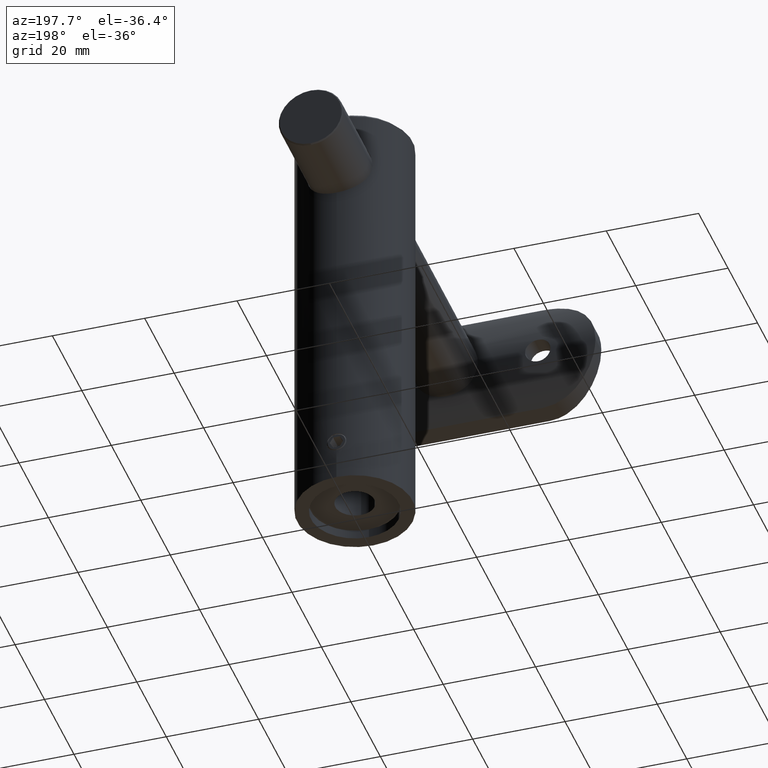
[diagram: clean part render]
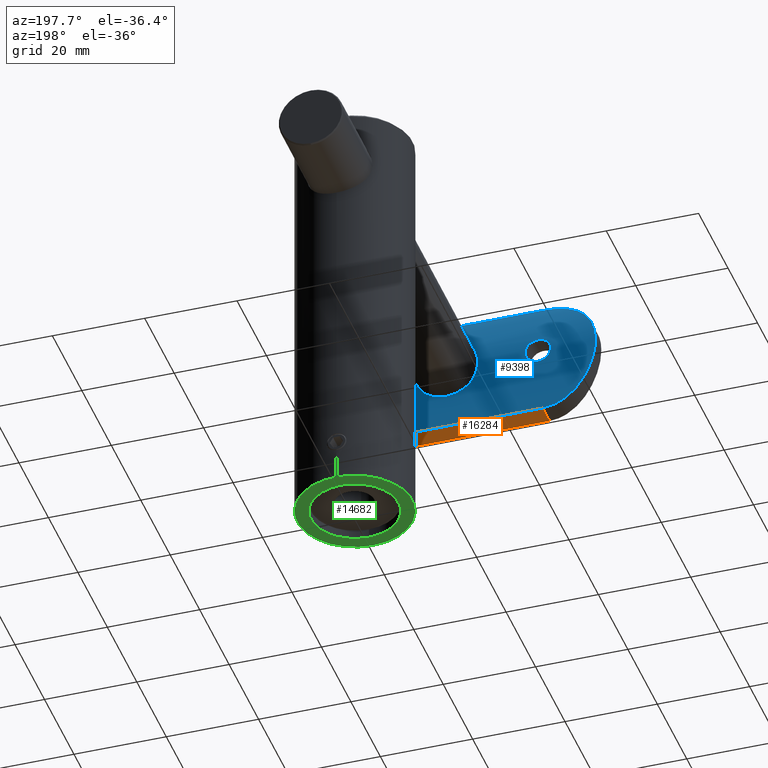
[diagram: same view with three faces highlighted in distinct colors, each labeled with its STEP entity id]
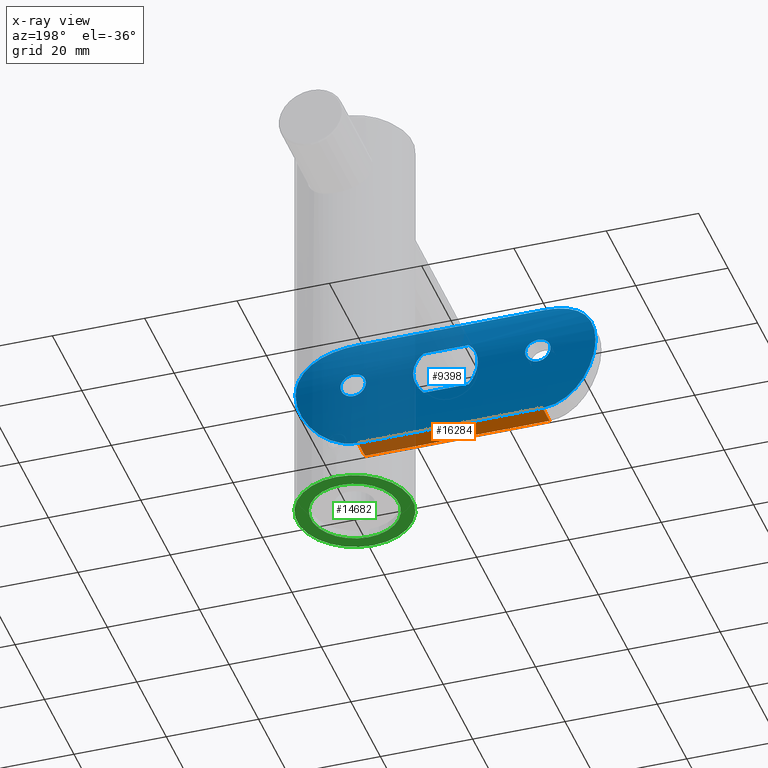
[diagram: x-ray of the same camera — body ghosted, the three highlighted faces saturated]
A machine part, auxiliary view with three faces highlighted in distinct colors.
The next image is the same camera in x-ray (body ghosted, the three faces saturated) — at least one of them is partly hidden behind the body in this view.
Their STEP definitions:

[orange] entity #16284 — the highlighted planar face has unit normal (0, 0, 1).
#433 = EDGE_CURVE ( 'NONE', #2323, #16320, #3040, .T. ) ;
#442 = VECTOR ( 'NONE', #17497, 1000.000000000000000 ) ;
#1345 = AXIS2_PLACEMENT_3D ( 'NONE', #5598, #2501, #15999 ) ;
#1474 = DIRECTION ( 'NONE',  ( -0.000000000000000000, -1.000000000000000000, -0.000000000000000000 ) ) ;
#1551 = CARTESIAN_POINT ( 'NONE',  ( 12.50000000000000355, 3.318729470161020600, -20.00000000000000355 ) ) ;
#2323 = VERTEX_POINT ( 'NONE', #1551 ) ;
#2501 = DIRECTION ( 'NONE',  ( -1.000000000000000000, 0.000000000000000000, 0.000000000000000000 ) ) ;
#2969 = EDGE_CURVE ( 'NONE', #9672, #7325, #15589, .T. ) ;
#3040 = LINE ( 'NONE', #10943, #442 ) ;
#3254 = CARTESIAN_POINT ( 'NONE',  ( 12.50000000000000355, 8.077208171562689998, 20.00000000000000000 ) ) ;
#3307 = VECTOR ( 'NONE', #18069, 1000.000000000000000 ) ;
#3536 = ORIENTED_EDGE ( 'NONE', *, *, #9557, .T. ) ;
#4582 = VECTOR ( 'NONE', #13784, 1000.000000000000000 ) ;
#5598 = CARTESIAN_POINT ( 'NONE',  ( 12.49999999999999645, 3.318729470161020600, 32.50000000000000000 ) ) ;
#6406 = ORIENTED_EDGE ( 'NONE', *, *, #17116, .F. ) ;
#7325 = VERTEX_POINT ( 'NONE', #8567 ) ;
#7352 = LINE ( 'NONE', #15048, #3307 ) ;
#8036 = ORIENTED_EDGE ( 'NONE', *, *, #2969, .T. ) ;
#8567 = CARTESIAN_POINT ( 'NONE',  ( 12.50000000000000355, 3.318729470161020600, 20.00000000000000000 ) ) ;
#9441 = ORIENTED_EDGE ( 'NONE', *, *, #433, .T. ) ;
#9557 = EDGE_CURVE ( 'NONE', #7325, #2323, #9575, .T. ) ;
#9575 = LINE ( 'NONE', #13909, #4582 ) ;
#9672 = VERTEX_POINT ( 'NONE', #3254 ) ;
#10943 = CARTESIAN_POINT ( 'NONE',  ( 12.50000000000000355, 3.318729470161020600, -20.00000000000000355 ) ) ;
#11971 = CARTESIAN_POINT ( 'NONE',  ( 12.50000000000000355, 3.318729470161020600, 20.00000000000000000 ) ) ;
#12292 = EDGE_LOOP ( 'NONE', ( #3536, #9441, #6406, #8036 ) ) ;
#13784 = DIRECTION ( 'NONE',  ( 0.000000000000000000, 0.000000000000000000, -1.000000000000000000 ) ) ;
#13909 = CARTESIAN_POINT ( 'NONE',  ( 12.49999999999999645, 3.318729470161020600, 32.50000000000000000 ) ) ;
#15048 = CARTESIAN_POINT ( 'NONE',  ( 12.49999999999999645, 8.077208171562689998, 32.50000000000000000 ) ) ;
#15192 = FACE_OUTER_BOUND ( 'NONE', #12292, .T. ) ;
#15589 = LINE ( 'NONE', #11971, #17710 ) ;
#15999 = DIRECTION ( 'NONE',  ( 0.000000000000000000, 0.000000000000000000, 1.000000000000000000 ) ) ;
#16137 = PLANE ( 'NONE',  #1345 ) ;
#16284 = ADVANCED_FACE ( 'NONE', ( #15192 ), #16137, .F. ) ;
#16320 = VERTEX_POINT ( 'NONE', #19156 ) ;
#17116 = EDGE_CURVE ( 'NONE', #9672, #16320, #7352, .T. ) ;
#17497 = DIRECTION ( 'NONE',  ( 0.000000000000000000, 1.000000000000000000, 0.000000000000000000 ) ) ;
#17710 = VECTOR ( 'NONE', #1474, 1000.000000000000000 ) ;
#18069 = DIRECTION ( 'NONE',  ( 0.000000000000000000, 0.000000000000000000, -1.000000000000000000 ) ) ;
#19156 = CARTESIAN_POINT ( 'NONE',  ( 12.50000000000000355, 8.077208171562689998, -20.00000000000000355 ) ) ;

[blue] entity #9398 — the highlighted cylindrical surface (partial cylindrical patch) has radius 25.2 mm, axis along (1, -0, -0).
#27 = CARTESIAN_POINT ( 'NONE',  ( -1.848043787636058921, 0.06372369354511402129, 6.767591064094360398 ) ) ;
#38 = CARTESIAN_POINT ( 'NONE',  ( -1.380705439593751471, 0.03740314638222813626, -22.38512476952050889 ) ) ;
#81 = CARTESIAN_POINT ( 'NONE',  ( 1.667268011024897856, 0.04195479554922608434, 32.41603179174911276 ) ) ;
#89 = CARTESIAN_POINT ( 'NONE',  ( 0.9221644624557857606, 0.01267861320224365415, 6.954787537755473537 ) ) ;
#155 = CARTESIAN_POINT ( 'NONE',  ( -0.2349423089766328465, 2.852032032984510242E-05, 6.999897326837698053 ) ) ;
#169 = CARTESIAN_POINT ( 'NONE',  ( -1.220874907014683819, 0.02904747797317693697, -22.47063278192353053 ) ) ;
#238 = CARTESIAN_POINT ( 'NONE',  ( -2.188487952104988477, 0.09500982583482578403, -21.67489940466903064 ) ) ;
#376 = CARTESIAN_POINT ( 'NONE',  ( -10.83002449294436431, 2.440458914311948835, -26.29431497601598622 ) ) ;
#394 = ORIENTED_EDGE ( 'NONE', *, *, #13033, .F. ) ;
#589 = CARTESIAN_POINT ( 'NONE',  ( 1.677668902466895817, 0.05546439489903875336, -17.81367847826244599 ) ) ;
#735 = CARTESIAN_POINT ( 'NONE',  ( 2.290527553827960361, 0.1006377947985132304, -6.630852029072079823 ) ) ;
#812 = FACE_OUTER_BOUND ( 'NONE', #13482, .T. ) ;
#858 = CARTESIAN_POINT ( 'NONE',  ( -12.50000000000000000, 3.318729470161021933, 20.84105733039345409 ) ) ;
#906 = CARTESIAN_POINT ( 'NONE',  ( -4.669349089494447824, 0.4341452233588674048, -5.235765592750420971 ) ) ;
#942 = ORIENTED_EDGE ( 'NONE', *, *, #9557, .F. ) ;
#975 = CARTESIAN_POINT ( 'NONE',  ( 0.000000000000000000, 6.938893903907228378E-15, -7.000000000000000000 ) ) ;
#997 = CARTESIAN_POINT ( 'NONE',  ( 0.000000000000000000, 6.938893903907228378E-15, -7.000000000000000000 ) ) ;
#1010 = CARTESIAN_POINT ( 'NONE',  ( 0.000000000000000000, 0.000000000000000000, 17.25000000000000000 ) ) ;
#1110 = CARTESIAN_POINT ( 'NONE',  ( 11.68341459577140107, 2.871341540761546351, -24.46233648995672993 ) ) ;
#1143 = CARTESIAN_POINT ( 'NONE',  ( 1.377952979709323955, 0.03725658765956723489, 17.61336343462641452 ) ) ;
#1244 = CARTESIAN_POINT ( 'NONE',  ( 11.21245238722107196, 2.629098992545249036, -25.58474759764794015 ) ) ;
#1287 = CARTESIAN_POINT ( 'NONE',  ( 12.41604513394916331, 3.270190002513742034, 21.66440971848879826 ) ) ;
#1292 = B_SPLINE_CURVE_WITH_KNOTS ( 'NONE', 3,
 ( #7649, #1578, #6524, #14207, #5118, #9428, #2022, #15606, #376, #3422, #6590, #11015, #11203, #9633, #17177, #15673, #10952, #14010, #6398, #14270, #11078, #2087, #4919, #6462, #6659, #2156 ),
 .UNSPECIFIED., .F., .F.,
 ( 4, 2, 2, 2, 2, 2, 2, 2, 2, 2, 2, 2, 4 ),
 ( 0.000000000000000000, 0.002482949619020705274, 0.003724424428531052274, 0.004965899238041399273, 0.007448848857062090670, 0.008690323666572441139, 0.009931798476082793342, 0.01117327328559314381, 0.01241474809510349255, 0.01489769771412418654, 0.01613917252363453528, 0.01738064733314488228, 0.01986359695216557628 ),
 .UNSPECIFIED. ) ;
#1301 = CARTESIAN_POINT ( 'NONE',  ( 0.000000000000000000, 0.000000000000000000, -32.50000000000000000 ) ) ;
#1363 = CARTESIAN_POINT ( 'NONE',  ( 2.750065284371434160, 0.1505061740554871630, -19.82148950650028496 ) ) ;
#1402 = CARTESIAN_POINT ( 'NONE',  ( -4.994997497496878047, 0.5000000000000004441, 4.904079934095687321 ) ) ;
#1405 = CARTESIAN_POINT ( 'NONE',  ( 2.661862787343811210, 0.1409550103587273451, -19.28631872760430710 ) ) ;
#1426 = B_SPLINE_CURVE_WITH_KNOTS ( 'NONE', 3,
 ( #7312, #10169, #7245, #13277, #5664, #5723, #4273, #11620, #4205, #2567, #13339, #5595, #17839, #11873, #14946, #19154, #5777, #5847, #1244, #1110, #16194, #11680, #19344, #16258, #2756, #17645 ),
 .UNSPECIFIED., .F., .F.,
 ( 4, 2, 2, 2, 2, 2, 2, 2, 2, 2, 2, 2, 4 ),
 ( 0.000000000000000000, 0.002483427128890328822, 0.003725140693335495835, 0.004966854257780662849, 0.007450281386671003814, 0.008691994951116173429, 0.009933708515561343044, 0.01117542208000651439, 0.01241713564445168574, 0.01490056277334201457, 0.01614227633778717377, 0.01738398990223233298, 0.01986741703112264792 ),
 .UNSPECIFIED. ) ;
#1468 = CARTESIAN_POINT ( 'NONE',  ( 2.185445985078765752, 0.09474132932689142972, 18.32100581967393182 ) ) ;
#1471 = CARTESIAN_POINT ( 'NONE',  ( 2.609876908287981578, 0.1354165326377147760, -19.11482317694285271 ) ) ;
#1524 = CARTESIAN_POINT ( 'NONE',  ( 1.816470635807413192, 0.06522320398721925816, 22.07265203258289432 ) ) ;
#1551 = CARTESIAN_POINT ( 'NONE',  ( 12.50000000000000355, 3.318729470161020600, -20.00000000000000355 ) ) ;
#1578 = CARTESIAN_POINT ( 'NONE',  ( -12.49999999999999645, 3.318729470161020600, -20.84092147420122032 ) ) ;
#1678 = CARTESIAN_POINT ( 'NONE',  ( 8.562141571826806796, 1.497233673915082219, 29.11593343704042880 ) ) ;
#1723 = CARTESIAN_POINT ( 'NONE',  ( 2.385900400082740624, 0.1130020285006599484, -18.62084753042212171 ) ) ;
#1752 = FACE_BOUND ( 'NONE', #2373, .T. ) ;
#1823 = EDGE_CURVE ( 'NONE', #10117, #6896, #19364, .T. ) ;
#1990 = FACE_BOUND ( 'NONE', #7555, .T. ) ;
#2000 = CARTESIAN_POINT ( 'NONE',  ( 0.000000000000000000, 6.938893903907228378E-15, -7.000000000000000000 ) ) ;
#2022 = CARTESIAN_POINT ( 'NONE',  ( -11.68647699581960886, 2.872938612537734748, -24.45450101598523318 ) ) ;
#2087 = CARTESIAN_POINT ( 'NONE',  ( -3.291592242805512658, 0.2126942720887902427, -32.06594161125494225 ) ) ;
#2156 = CARTESIAN_POINT ( 'NONE',  ( 0.000000000000000000, 0.000000000000000000, -32.50000000000000000 ) ) ;
#2220 = CARTESIAN_POINT ( 'NONE',  ( -1.611077364521717126, 0.05052746572996459629, -6.816003579833036063 ) ) ;
#2237 = EDGE_CURVE ( 'NONE', #14121, #10117, #16927, .T. ) ;
#2242 = CARTESIAN_POINT ( 'NONE',  ( -1.664684350995173423, 0.04192139592815165294, 32.41608617209116971 ) ) ;
#2286 = B_SPLINE_CURVE_WITH_KNOTS ( 'NONE', 3,
 ( #975, #7051, #3822, #2220, #18959, #5260, #6925, #6787, #8446, #19020, #906, #8517 ),
 .UNSPECIFIED., .F., .F.,
 ( 4, 2, 2, 2, 2, 4 ),
 ( 2.710505431213761085E-18, 0.001388628629513970723, 0.002082942944270954784, 0.002777257259027939712, 0.004165885888541908701, 0.005554514518055877689 ),
 .UNSPECIFIED. ) ;
#2314 = CARTESIAN_POINT ( 'NONE',  ( -10.15326211524584643, 2.134602035805865938, 27.30241053714793509 ) ) ;
#2315 = CARTESIAN_POINT ( 'NONE',  ( 3.746260209242295414, 0.2792753570640806315, -5.917626068317376031 ) ) ;
#2323 = VERTEX_POINT ( 'NONE', #1551 ) ;
#2373 = EDGE_LOOP ( 'NONE', ( #14703, #11355 ) ) ;
#2388 = CARTESIAN_POINT ( 'NONE',  ( -12.49999999999999645, 3.318729470161020600, 20.00000000000000000 ) ) ;
#2567 = CARTESIAN_POINT ( 'NONE',  ( 7.316861939614360821, 1.083062932609349494, -30.14291416132809687 ) ) ;
#2652 = CARTESIAN_POINT ( 'NONE',  ( -2.661730875569997323, 0.1409410865998123319, 20.71401158310862911 ) ) ;
#2713 = CARTESIAN_POINT ( 'NONE',  ( -0.3580001740282882094, 0.001917836237168821494, 22.73259430812108306 ) ) ;
#2756 = CARTESIAN_POINT ( 'NONE',  ( 12.49999999999999822, 3.318729470161019712, -20.84105733039345054 ) ) ;
#2789 = CARTESIAN_POINT ( 'NONE',  ( 0.8870457649144875001, 0.01506562019406045352, 17.39075877949504800 ) ) ;
#2807 = CARTESIAN_POINT ( 'NONE',  ( 11.82730682096132568, 2.947497412072442202, 24.06646263368968874 ) ) ;
#2847 = CARTESIAN_POINT ( 'NONE',  ( -1.377384947430292605, 0.03722026577971891681, 22.38704495760668323 ) ) ;
#3004 = CARTESIAN_POINT ( 'NONE',  ( 0.4606467792952476104, -5.647623810542094514E-05, 7.000203314475387906 ) ) ;
#3013 = CARTESIAN_POINT ( 'NONE',  ( -1.217448732056684468, 0.02888063956007401456, -17.52767396449248238 ) ) ;
#3039 = CARTESIAN_POINT ( 'NONE',  ( 1.379931598055809561, 0.03736833065385465613, 22.38544828646618257 ) ) ;
#3069 = CARTESIAN_POINT ( 'NONE',  ( 2.471811025445441512, 0.1214254394478257310, -21.21849364676016947 ) ) ;
#3071 = CARTESIAN_POINT ( 'NONE',  ( 3.739686144282476477, 0.2782750895421334247, 5.921855256084517904 ) ) ;
#3084 = ORIENTED_EDGE ( 'NONE', *, *, #1823, .T. ) ;
#3108 = CARTESIAN_POINT ( 'NONE',  ( 2.749934349876255180, 0.1504917997237345262, 19.81948369612383232 ) ) ;
#3123 = CARTESIAN_POINT ( 'NONE',  ( 3.291592242805514434, 0.2126942720887934901, 32.06594161125494225 ) ) ;
#3139 = VECTOR ( 'NONE', #14016, 1000.000000000000000 ) ;
#3173 = CARTESIAN_POINT ( 'NONE',  ( 1.379931598055809561, 0.03736833065385465613, -17.61455171353381743 ) ) ;
#3205 = CARTESIAN_POINT ( 'NONE',  ( -0.3636032754976208925, -4.282222122230053222E-18, -22.75000000000001066 ) ) ;
#3237 = CARTESIAN_POINT ( 'NONE',  ( 1.816470635807413192, 0.06522320398721925816, -17.92734796741711278 ) ) ;
#3251 = CARTESIAN_POINT ( 'NONE',  ( 7.642973678624866984, 1.184744735341889843, 29.89937630247453981 ) ) ;
#3259 = CARTESIAN_POINT ( 'NONE',  ( -0.4673612864847880854, 0.003256157991254301273, 6.988305028286098342 ) ) ;
#3286 = CARTESIAN_POINT ( 'NONE',  ( 0.1795455977072642761, 7.832407784142106870E-15, -17.25000000000000355 ) ) ;
#3422 = CARTESIAN_POINT ( 'NONE',  ( -10.15187181039420672, 2.133985303426437774, -27.30437927746718429 ) ) ;
#3701 = VERTEX_POINT ( 'NONE', #1301 ) ;
#3760 = B_SPLINE_CURVE_WITH_KNOTS ( 'NONE', 3,
 ( #13520, #4442, #1287, #5763, #17949, #2807, #15047, #7486, #13385, #4316, #14932, #19587, #16440, #1678, #9138, #3251, #4561, #7617, #7815, #12373, #18205, #3123, #15191, #81, #10662, #6104 ),
 .UNSPECIFIED., .F., .F.,
 ( 4, 2, 2, 2, 2, 2, 2, 2, 2, 2, 2, 2, 4 ),
 ( 0.000000000000000000, 0.002482949619020690963, 0.003724424428531040998, 0.004965899238041390600, 0.007448848857062099343, 0.008690323666572449812, 0.009931798476082800281, 0.01117327328559315075, 0.01241474809510349601, 0.01489769771412419001, 0.01613917252363453528, 0.01738064733314488228, 0.01986359695216557281 ),
 .UNSPECIFIED. ) ;
#3822 = CARTESIAN_POINT ( 'NONE',  ( -0.9310396230433163334, 0.01311211510574621444, -6.953205413290147519 ) ) ;
#3839 = CARTESIAN_POINT ( 'NONE',  ( -10.83018612312571882, 2.440555194631706559, 26.29386951518686644 ) ) ;
#3904 = CARTESIAN_POINT ( 'NONE',  ( -8.266035766619465264, 1.392015620549705401, 29.38537545976073417 ) ) ;
#4020 = EDGE_CURVE ( 'NONE', #7353, #14121, #17210, .T. ) ;
#4205 = CARTESIAN_POINT ( 'NONE',  ( 6.305381315458570946, 0.7915044484486802867, -30.82371801999916272 ) ) ;
#4264 = CARTESIAN_POINT ( 'NONE',  ( 2.661818859993606790, 0.1409500894293580775, -20.71413469809018792 ) ) ;
#4273 = CARTESIAN_POINT ( 'NONE',  ( 4.460191993434857949, 0.3948698794312909266, -31.68435314470301023 ) ) ;
#4288 = CARTESIAN_POINT ( 'NONE',  ( -1.681001452974609789, 0.05567932825155805926, 17.81610398777751314 ) ) ;
#4316 = CARTESIAN_POINT ( 'NONE',  ( 10.15187181039420672, 2.133985303426435554, 27.30437927746717719 ) ) ;
#4326 = CARTESIAN_POINT ( 'NONE',  ( 2.185445985078765752, 0.09474132932689142972, -21.67899418032607528 ) ) ;
#4348 = CARTESIAN_POINT ( 'NONE',  ( -2.070049739579363557, 0.08484369530549545901, 21.81920921176698158 ) ) ;
#4358 = CARTESIAN_POINT ( 'NONE',  ( 2.071661256399241147, 0.08497705952025111364, 18.18262409988288653 ) ) ;
#4421 = CARTESIAN_POINT ( 'NONE',  ( 2.732147407359613034, 0.1485206058410737384, 20.36086701383229780 ) ) ;
#4442 = CARTESIAN_POINT ( 'NONE',  ( 12.50000000000000178, 3.318729470161021045, 20.84092147420122387 ) ) ;
#4514 = CARTESIAN_POINT ( 'NONE',  ( 3.131794892197711455, 0.1945159506885136003, 6.264640589746616861 ) ) ;
#4561 = CARTESIAN_POINT ( 'NONE',  ( 7.315607594578459327, 1.082687997029825322, 30.14380031678955874 ) ) ;
#4569 = CARTESIAN_POINT ( 'NONE',  ( 3.539860134001161285, 0.2490128047230138753, 6.043446963216091206 ) ) ;
#4578 = CARTESIAN_POINT ( 'NONE',  ( -2.662740999674293896, 0.1410487502677293670, -20.71023810214682115 ) ) ;
#4582 = VECTOR ( 'NONE', #13784, 1000.000000000000000 ) ;
#4628 = DIRECTION ( 'NONE',  ( -1.000000000000000000, 0.000000000000000000, 0.000000000000000000 ) ) ;
#4643 = CARTESIAN_POINT ( 'NONE',  ( -2.609961094115733182, 0.1354253680277228145, -20.88492447427831422 ) ) ;
#4715 = CARTESIAN_POINT ( 'NONE',  ( -1.819241778286838196, 0.06543225118885480363, -22.07002044224182669 ) ) ;
#4812 = ORIENTED_EDGE ( 'NONE', *, *, #15067, .T. ) ;
#4919 = CARTESIAN_POINT ( 'NONE',  ( -2.886391478844329672, 0.1625181075792200835, -32.16925023365995173 ) ) ;
#5118 = CARTESIAN_POINT ( 'NONE',  ( -12.07039748615804697, 3.078414103210626696, -23.27518083691609618 ) ) ;
#5260 = CARTESIAN_POINT ( 'NONE',  ( -2.281009278780524063, 0.1024524370745540786, -6.622027795030902553 ) ) ;
#5277 = CARTESIAN_POINT ( 'NONE',  ( -4.460191993434861502, 0.3948698794312914817, 31.68435314470301023 ) ) ;
#5278 = CARTESIAN_POINT ( 'NONE',  ( 3.367778438409112056E-16, 6.952467769420645123E-15, 22.75000000000000000 ) ) ;
#5340 = CARTESIAN_POINT ( 'NONE',  ( -11.68341459577140462, 2.871341540761545019, 24.46233648995672993 ) ) ;
#5545 = CARTESIAN_POINT ( 'NONE',  ( -2.186191567257209645, 0.09480897740506398497, 21.67789325702194958 ) ) ;
#5595 = CARTESIAN_POINT ( 'NONE',  ( 8.266035766619467040, 1.392015620549702959, -29.38537545976074483 ) ) ;
#5617 = CARTESIAN_POINT ( 'NONE',  ( -2.731891327557904869, 0.1484927668286209756, 20.36248250880535338 ) ) ;
#5664 = CARTESIAN_POINT ( 'NONE',  ( 3.277855041561019700, 0.2108776143917553691, -32.06970119788353202 ) ) ;
#5694 = CARTESIAN_POINT ( 'NONE',  ( 1.220040459320808290, 0.02899940046474466446, 17.52886843461235600 ) ) ;
#5723 = CARTESIAN_POINT ( 'NONE',  ( 4.070717388981839768, 0.3277296730789981960, -31.82587335543209761 ) ) ;
#5743 = CARTESIAN_POINT ( 'NONE',  ( -2.385862764267738356, 0.1129972152947571334, 21.37928177715322775 ) ) ;
#5763 = CARTESIAN_POINT ( 'NONE',  ( 12.17172894015757834, 3.134241449003887681, 22.87552147047213680 ) ) ;
#5771 = CARTESIAN_POINT ( 'NONE',  ( 2.749934349876255180, 0.1504917997237345262, -20.18051630387617124 ) ) ;
#5777 = CARTESIAN_POINT ( 'NONE',  ( 10.15326211524584643, 2.134602035805869047, -27.30241053714794930 ) ) ;
#5798 = CARTESIAN_POINT ( 'NONE',  ( -1.220874907014684485, 0.02904747797317695779, 17.52936721807647302 ) ) ;
#5847 = CARTESIAN_POINT ( 'NONE',  ( 10.83018612312572060, 2.440555194631707892, -26.29386951518687709 ) ) ;
#5880 = CARTESIAN_POINT ( 'NONE',  ( 0.8860473344149223385, 0.01503029826975388339, 22.60958046709580316 ) ) ;
#5910 = CARTESIAN_POINT ( 'NONE',  ( 0.8870457649144875001, 0.01506562019406045352, -22.60924122050494844 ) ) ;
#5952 = CARTESIAN_POINT ( 'NONE',  ( 2.385900400082740624, 0.1130020285006599484, 21.37915246957788540 ) ) ;
#6055 = CARTESIAN_POINT ( 'NONE',  ( -1.677983819124378329, 0.05547686773417471323, -17.81378335341627661 ) ) ;
#6087 = CARTESIAN_POINT ( 'NONE',  ( 2.609876908287981578, 0.1354165326377147760, 20.88517682305715084 ) ) ;
#6104 = CARTESIAN_POINT ( 'NONE',  ( 0.000000000000000000, 0.000000000000000000, 32.50000000000000000 ) ) ;
#6127 = CARTESIAN_POINT ( 'NONE',  ( -2.186191567257209201, 0.09480897740506145921, -18.32210674297804687 ) ) ;
#6155 = CARTESIAN_POINT ( 'NONE',  ( 1.818193974664967572, 0.06535601341085750526, 17.92905668979468103 ) ) ;
#6237 = CARTESIAN_POINT ( 'NONE',  ( -3.548809991974041900, 0.2502861401745588577, 6.038192309906697197 ) ) ;
#6309 = CARTESIAN_POINT ( 'NONE',  ( -2.749863044303474613, 0.1504839716144792949, -19.81620417960689906 ) ) ;
#6398 = CARTESIAN_POINT ( 'NONE',  ( -5.594010815491763822, 0.6168360506386560971, -31.20802645236642192 ) ) ;
#6458 = EDGE_CURVE ( 'NONE', #7325, #7118, #3760, .T. ) ;
#6462 = CARTESIAN_POINT ( 'NONE',  ( -1.667268011024897190, 0.04195479554922604964, -32.41603179174911276 ) ) ;
#6524 = CARTESIAN_POINT ( 'NONE',  ( -12.41604513394915976, 3.270190002513739813, -21.66440971848879826 ) ) ;
#6577 = VERTEX_POINT ( 'NONE', #18721 ) ;
#6590 = CARTESIAN_POINT ( 'NONE',  ( -9.908890582928830071, 2.028239840774365366, -27.63058222437334166 ) ) ;
#6605 = VERTEX_POINT ( 'NONE', #7940 ) ;
#6659 = CARTESIAN_POINT ( 'NONE',  ( -0.8408319059978934806, 2.861089066281186367E-17, -32.50000000000000000 ) ) ;
#6787 = CARTESIAN_POINT ( 'NONE',  ( -3.141571527728773461, 0.1929047068352935101, -6.272553163709011059 ) ) ;
#6885 = CARTESIAN_POINT ( 'NONE',  ( -12.06660317602190524, 3.076343127531658173, 23.28902056191594383 ) ) ;
#6887 = CARTESIAN_POINT ( 'NONE',  ( 1.849747642260559433, 0.06385367874898199847, -6.767109309269601525 ) ) ;
#6896 = VERTEX_POINT ( 'NONE', #11630 ) ;
#6925 = CARTESIAN_POINT ( 'NONE',  ( -2.501389699445221826, 0.1235345146525243104, -6.541914726237066269 ) ) ;
#6984 = CARTESIAN_POINT ( 'NONE',  ( 0.1818445906004799162, 5.646886315028670532E-19, -22.75000000000000000 ) ) ;
#7051 = CARTESIAN_POINT ( 'NONE',  ( -0.4697105472797771797, -2.258754526011465131E-18, -6.999999999999999112 ) ) ;
#7078 = CARTESIAN_POINT ( 'NONE',  ( -2.609961094115733626, 0.1354253680277228422, 19.11507552572168933 ) ) ;
#7118 = VERTEX_POINT ( 'NONE', #16468 ) ;
#7145 = CARTESIAN_POINT ( 'NONE',  ( -2.749863044303475057, 0.1504839716144792949, 20.18379582039309739 ) ) ;
#7245 = CARTESIAN_POINT ( 'NONE',  ( 1.664684350995175643, 0.04192139592815183335, -32.41608617209118393 ) ) ;
#7267 = CARTESIAN_POINT ( 'NONE',  ( -2.608673552859928080, 0.1352907402618927224, 20.88869986416368008 ) ) ;
#7312 = CARTESIAN_POINT ( 'NONE',  ( 0.000000000000000000, 0.000000000000000000, -32.50000000000000000 ) ) ;
#7325 = VERTEX_POINT ( 'NONE', #8567 ) ;
#7336 = CARTESIAN_POINT ( 'NONE',  ( -2.387772925441573157, 0.1131797228511475656, 18.62402471359490264 ) ) ;
#7353 = VERTEX_POINT ( 'NONE', #14757 ) ;
#7376 = CARTESIAN_POINT ( 'NONE',  ( 2.386475810722792357, 0.1130527907451603781, -21.37837905385300985 ) ) ;
#7405 = CARTESIAN_POINT ( 'NONE',  ( 3.367778438409112056E-16, 6.952467769420645123E-15, 22.75000000000000000 ) ) ;
#7486 = CARTESIAN_POINT ( 'NONE',  ( 11.21365936985681877, 2.629676505859725122, 25.58293283478850455 ) ) ;
#7491 = DIRECTION ( 'NONE',  ( 0.000000000000000000, 0.000000000000000000, -1.000000000000000000 ) ) ;
#7542 = EDGE_CURVE ( 'NONE', #17485, #6577, #17239, .T. ) ;
#7555 = EDGE_LOOP ( 'NONE', ( #7583, #394 ) ) ;
#7561 = CARTESIAN_POINT ( 'NONE',  ( 0.7123072138261845598, 0.009455089816870465222, -22.66219122090236127 ) ) ;
#7583 = ORIENTED_EDGE ( 'NONE', *, *, #7542, .F. ) ;
#7617 = CARTESIAN_POINT ( 'NONE',  ( 6.305223603466181714, 0.7914857843385516567, 30.82374023567219368 ) ) ;
#7649 = CARTESIAN_POINT ( 'NONE',  ( -12.49999999999999645, 3.318729470161020600, -20.00000000000000355 ) ) ;
#7693 = CARTESIAN_POINT ( 'NONE',  ( -0.7129347024110691544, 0.009461439531610339390, -17.33786553918137230 ) ) ;
#7748 = CARTESIAN_POINT ( 'NONE',  ( -3.141235740066085746, 0.1957021280014347442, 6.259908685906100168 ) ) ;
#7815 = CARTESIAN_POINT ( 'NONE',  ( 5.594010815491770039, 0.6168360506386563191, 31.20802645236641126 ) ) ;
#7834 = CARTESIAN_POINT ( 'NONE',  ( -2.732406010615071157, 0.1485492483776577055, -20.35858776644248991 ) ) ;
#7869 = ORIENTED_EDGE ( 'NONE', *, *, #17660, .T. ) ;
#7940 = CARTESIAN_POINT ( 'NONE',  ( 0.000000000000000000, 0.000000000000000000, 17.25000000000000000 ) ) ;
#8018 = CARTESIAN_POINT ( 'NONE',  ( 3.367778438409112056E-16, 6.952467769420645123E-15, 22.75000000000000000 ) ) ;
#8138 = B_SPLINE_CURVE_WITH_KNOTS ( 'NONE', 3,
 ( #5278, #18908, #2713, #17855, #13294, #14825, #2847, #14704, #13423, #4348, #5545, #5743, #16151, #7267, #2652, #5617, #7145, #16212, #10307, #19235, #7078, #19433, #7336, #8598, #10118, #17732, #4288, #16419, #5798, #17922, #13235, #11637 ),
 .UNSPECIFIED., .F., .F.,
 ( 4, 2, 2, 2, 2, 2, 2, 2, 2, 2, 2, 2, 2, 2, 2, 4 ),
 ( 0.008604157104151117716, 0.009141789900862767188, 0.009679422697574418394, 0.01021705549428606787, 0.01075468829099771734, 0.01129232108770936854, 0.01182995388442101801, 0.01236758668113266749, 0.01290521947784431869, 0.01344285227455596816, 0.01398048507126761764, 0.01451811786797926884, 0.01505575066469091831, 0.01559338346140256779, 0.01613101625811421899, 0.01720628185153751447 ),
 .UNSPECIFIED. ) ;
#8267 = CARTESIAN_POINT ( 'NONE',  ( -2.877492456091673478, 0.1615283928029718485, 32.17128298990892432 ) ) ;
#8319 = ORIENTED_EDGE ( 'NONE', *, *, #15297, .T. ) ;
#8343 = LINE ( 'NONE', #12671, #3139 ) ;
#8358 = VERTEX_POINT ( 'NONE', #8018 ) ;
#8375 = CARTESIAN_POINT ( 'NONE',  ( 4.994997497496878047, 0.5000000000000004441, 32.50000000000000000 ) ) ;
#8394 = CARTESIAN_POINT ( 'NONE',  ( -11.82318603278413960, 2.945306615177200271, 24.07833795785314734 ) ) ;
#8395 = CARTESIAN_POINT ( 'NONE',  ( 0.9402805556948540255, 0.01343035068150135597, -6.952064960875579125 ) ) ;
#8446 = CARTESIAN_POINT ( 'NONE',  ( -3.545792875619930395, 0.2477049255195075683, -6.053140542082076969 ) ) ;
#8517 = CARTESIAN_POINT ( 'NONE',  ( -4.994997497496878047, 0.5000000000000004441, -4.904079934095687321 ) ) ;
#8542 = CARTESIAN_POINT ( 'NONE',  ( 3.549571146164063329, 0.2503953886577584553, -6.037740435597695132 ) ) ;
#8567 = CARTESIAN_POINT ( 'NONE',  ( 12.50000000000000355, 3.318729470161020600, 20.00000000000000000 ) ) ;
#8598 = CARTESIAN_POINT ( 'NONE',  ( -2.188487952104988921, 0.09500982583482585342, 18.32510059533095870 ) ) ;
#8607 = CARTESIAN_POINT ( 'NONE',  ( 0.7123072138261845598, 0.009455089816870465222, 17.33780877909764229 ) ) ;
#8947 = CARTESIAN_POINT ( 'NONE',  ( 0.000000000000000000, 25.20000000000000639, 32.50000000000000000 ) ) ;
#8950 = CARTESIAN_POINT ( 'NONE',  ( -12.49999999999999645, 3.318729470161020600, -20.00000000000000355 ) ) ;
#9042 = CARTESIAN_POINT ( 'NONE',  ( 3.367778438409112056E-16, 6.952467769420645123E-15, -17.25000000000000000 ) ) ;
#9081 = CARTESIAN_POINT ( 'NONE',  ( -4.669080344610500255, 0.4340908759895246716, 5.236039319941006021 ) ) ;
#9091 = CARTESIAN_POINT ( 'NONE',  ( -2.661730875569997767, 0.1409410865998123596, -19.28598841689136734 ) ) ;
#9138 = CARTESIAN_POINT ( 'NONE',  ( 8.265288067340183176, 1.391754679466073785, 29.38603808824741392 ) ) ;
#9147 = CARTESIAN_POINT ( 'NONE',  ( -2.289067587771871359, 0.1005006583606698062, 6.631371122702274690 ) ) ;
#9273 = CARTESIAN_POINT ( 'NONE',  ( 4.669051333004630600, 0.4340850090705478670, 5.236068869397914050 ) ) ;
#9283 = CARTESIAN_POINT ( 'NONE',  ( -2.385862764267737468, 0.1129972152947546077, -18.62071822284676870 ) ) ;
#9298 = CARTESIAN_POINT ( 'NONE',  ( 0.3619265619250442434, 0.001981854215834538951, -17.26799651666123481 ) ) ;
#9314 = FACE_BOUND ( 'NONE', #19260, .T. ) ;
#9333 = CARTESIAN_POINT ( 'NONE',  ( -3.745609676626447282, 0.2791767651045830023, 5.918042161965037629 ) ) ;
#9344 = CARTESIAN_POINT ( 'NONE',  ( -2.072542795732173815, 0.08505021053595093750, -21.81636770479491361 ) ) ;
#9398 = ADVANCED_FACE ( 'NONE', ( #9314, #812, #1990, #1752 ), #13124, .T. ) ;
#9428 = CARTESIAN_POINT ( 'NONE',  ( -11.82730682096132746, 2.947497412072442646, -24.06646263368969940 ) ) ;
#9557 = EDGE_CURVE ( 'NONE', #7325, #2323, #9575, .T. ) ;
#9575 = LINE ( 'NONE', #13909, #4582 ) ;
#9633 = CARTESIAN_POINT ( 'NONE',  ( -8.562141571826799691, 1.497233673915079999, -29.11593343704044301 ) ) ;
#9786 = CARTESIAN_POINT ( 'NONE',  ( -6.305381315458571834, 0.7915044484486803977, 30.82371801999916272 ) ) ;
#9923 = CARTESIAN_POINT ( 'NONE',  ( -12.41600094213971772, 3.270152093552311179, 21.66693629175974678 ) ) ;
#10117 = VERTEX_POINT ( 'NONE', #10321 ) ;
#10118 = CARTESIAN_POINT ( 'NONE',  ( -2.072542795732173371, 0.08505021053595093750, 18.18363229520508639 ) ) ;
#10169 = CARTESIAN_POINT ( 'NONE',  ( 0.8406273536774236943, -3.811648262644351526E-18, -32.50000000000000000 ) ) ;
#10201 = CARTESIAN_POINT ( 'NONE',  ( 0.3606231533980621129, 0.001966636658819735650, 17.26785897055960106 ) ) ;
#10307 = CARTESIAN_POINT ( 'NONE',  ( -2.732406010615071601, 0.1485492483776577055, 19.64141223355751009 ) ) ;
#10321 = CARTESIAN_POINT ( 'NONE',  ( 4.994997497496878047, 0.5000000000000004441, 4.904079934095680215 ) ) ;
#10578 = CARTESIAN_POINT ( 'NONE',  ( 2.661862787343811210, 0.1409550103587273451, 20.71368127239568935 ) ) ;
#10616 = CARTESIAN_POINT ( 'NONE',  ( -1.681001452974610233, 0.05567932825155808008, -22.18389601222249397 ) ) ;
#10632 = CARTESIAN_POINT ( 'NONE',  ( -12.49999999999999645, 3.318729470161020600, 20.00000000000000000 ) ) ;
#10648 = EDGE_CURVE ( 'NONE', #18459, #7353, #2286, .T. ) ;
#10662 = CARTESIAN_POINT ( 'NONE',  ( 0.8408319059978930365, 2.371692252312038176E-17, 32.50000000000000000 ) ) ;
#10666 = B_SPLINE_CURVE_WITH_KNOTS ( 'NONE', 3,
 ( #1010, #19374, #10201, #8607, #2789, #5694, #1143, #16551, #6155, #4358, #1468, #16486, #11902, #13500, #13561, #14974, #3108, #13692, #4421, #10578, #6087, #12034, #5952, #13622, #16619, #1524, #15030, #3039, #18187, #5880, #16678, #15104, #19503, #7405 ),
 .UNSPECIFIED., .F., .F.,
 ( 4, 2, 2, 2, 2, 2, 2, 2, 2, 2, 2, 2, 2, 2, 2, 2, 4 ),
 ( 0.000000000000000000, 0.0005377598190094449657, 0.001075519638018889931, 0.001613279457028334463, 0.002151039276037779429, 0.002688799095047223961, 0.003226558914056668493, 0.003764318733066113892, 0.004302078552075558858, 0.004839838371085003824, 0.005377598190094448789, 0.005915358009103893755, 0.006453117828113337853, 0.006990877647122783686, 0.007528637466132228652, 0.008066397285141673618, 0.008604157104151117716 ),
 .UNSPECIFIED. ) ;
#10730 = CARTESIAN_POINT ( 'NONE',  ( 2.285116335268840171, 0.1001709153427632476, 6.632589173777880376 ) ) ;
#10793 = CARTESIAN_POINT ( 'NONE',  ( -0.9333434786751416690, 0.01621162805871756082, 6.941448241634312843 ) ) ;
#10952 = CARTESIAN_POINT ( 'NONE',  ( -7.315607594578453998, 1.082687997029823324, -30.14380031678956939 ) ) ;
#11015 = CARTESIAN_POINT ( 'NONE',  ( -9.397641427769132250, 1.816225346274621177, -28.25204418689427044 ) ) ;
#11078 = CARTESIAN_POINT ( 'NONE',  ( -4.083048678825495159, 0.3297619529015533013, -31.82160056614383237 ) ) ;
#11203 = CARTESIAN_POINT ( 'NONE',  ( -9.128318860952347791, 1.709465851586695395, -28.54893592778295641 ) ) ;
#11355 = ORIENTED_EDGE ( 'NONE', *, *, #17698, .F. ) ;
#11365 = CARTESIAN_POINT ( 'NONE',  ( -9.910013130227614653, 2.028718244006088245, 27.62913782769574667 ) ) ;
#11367 = CARTESIAN_POINT ( 'NONE',  ( 4.316102207502559907, 0.3693900422898296898, -5.530128126320171589 ) ) ;
#11620 = CARTESIAN_POINT ( 'NONE',  ( 5.592058036261041032, 0.6162643484422618556, -31.20930733956447511 ) ) ;
#11630 = CARTESIAN_POINT ( 'NONE',  ( 4.994997497496878047, 0.5000000000000004441, -4.904079934095694426 ) ) ;
#11637 = CARTESIAN_POINT ( 'NONE',  ( 0.000000000000000000, 0.000000000000000000, 17.25000000000000000 ) ) ;
#11680 = CARTESIAN_POINT ( 'NONE',  ( 12.06660317602190702, 3.076343127531659061, -23.28902056191594738 ) ) ;
#11868 = CARTESIAN_POINT ( 'NONE',  ( 1.676804932486638089, 0.05540344988688962469, -22.18703308796564144 ) ) ;
#11873 = CARTESIAN_POINT ( 'NONE',  ( 9.129107160068510751, 1.709771713892839440, -28.54809784016516971 ) ) ;
#11902 = CARTESIAN_POINT ( 'NONE',  ( 2.471811025445441512, 0.1214254394478257310, 18.78150635323983053 ) ) ;
#11947 = ORIENTED_EDGE ( 'NONE', *, *, #4020, .T. ) ;
#12034 = CARTESIAN_POINT ( 'NONE',  ( 2.471992188797773160, 0.1214422965093859136, 21.21829803538181025 ) ) ;
#12062 = CARTESIAN_POINT ( 'NONE',  ( 1.818193974664967572, 0.06535601341085750526, -22.07094331020531897 ) ) ;
#12066 = DIRECTION ( 'NONE',  ( -0.000000000000000000, -0.000000000000000000, 1.000000000000000000 ) ) ;
#12120 = CARTESIAN_POINT ( 'NONE',  ( 0.3606231533980621129, 0.001966636658819735650, -22.73214102944040249 ) ) ;
#12131 = CARTESIAN_POINT ( 'NONE',  ( -1.377384947430292605, 0.03722026577971900008, -17.61295504239332388 ) ) ;
#12216 = EDGE_CURVE ( 'NONE', #17749, #18316, #8343, .T. ) ;
#12263 = VECTOR ( 'NONE', #18956, 1000.000000000000000 ) ;
#12265 = CARTESIAN_POINT ( 'NONE',  ( -2.731891327557904869, 0.1484927668286209479, -19.63751749119465728 ) ) ;
#12298 = CARTESIAN_POINT ( 'NONE',  ( 2.073153042044685090, 0.08509194481504836483, -18.18410119137066872 ) ) ;
#12320 = CARTESIAN_POINT ( 'NONE',  ( 2.923378882602775786, 0.1692259389580320350, 6.364519216893700815 ) ) ;
#12372 = EDGE_CURVE ( 'NONE', #3701, #2323, #1426, .T. ) ;
#12373 = CARTESIAN_POINT ( 'NONE',  ( 4.468211620779538151, 0.3963447934949523299, 31.68121519372563810 ) ) ;
#12671 = CARTESIAN_POINT ( 'NONE',  ( -12.49999999999999645, 3.318729470161020600, 32.50000000000005684 ) ) ;
#12699 = VECTOR ( 'NONE', #12066, 1000.000000000000000 ) ;
#12885 = CARTESIAN_POINT ( 'NONE',  ( 2.931071408694909231, 0.1701189516846384753, -6.361014005149245421 ) ) ;
#12953 = CARTESIAN_POINT ( 'NONE',  ( -7.643915563752463171, 1.185045859685587066, 29.89864509263436432 ) ) ;
#12954 = CARTESIAN_POINT ( 'NONE',  ( 0.000000000000000000, 0.000000000000000000, -22.75000000000000000 ) ) ;
#13033 = EDGE_CURVE ( 'NONE', #6577, #17485, #14735, .T. ) ;
#13124 = CYLINDRICAL_SURFACE ( 'NONE', #14483, 25.19999999999999929 ) ;
#13235 = CARTESIAN_POINT ( 'NONE',  ( -0.3636032754976208370, -4.705738595857204162E-18, 17.25000000000000355 ) ) ;
#13277 = CARTESIAN_POINT ( 'NONE',  ( 2.877492456091673922, 0.1615283928029718485, -32.17128298990892432 ) ) ;
#13294 = CARTESIAN_POINT ( 'NONE',  ( -0.8864897003658913643, 0.01505276392572449905, 22.60935115539858842 ) ) ;
#13339 = CARTESIAN_POINT ( 'NONE',  ( 7.643915563752462283, 1.185045859685583292, -29.89864509263435366 ) ) ;
#13385 = CARTESIAN_POINT ( 'NONE',  ( 10.83002449294435898, 2.440458914311947503, 26.29431497601598267 ) ) ;
#13423 = CARTESIAN_POINT ( 'NONE',  ( -1.816389252517511377, 0.06522504145088657557, 22.07252458703131381 ) ) ;
#13482 = EDGE_LOOP ( 'NONE', ( #8319, #18418, #942, #14214, #4812, #19026 ) ) ;
#13500 = CARTESIAN_POINT ( 'NONE',  ( 2.608974361319664315, 0.1353235704774162496, 19.11240251539045332 ) ) ;
#13520 = CARTESIAN_POINT ( 'NONE',  ( 12.50000000000000355, 3.318729470161020600, 20.00000000000000000 ) ) ;
#13561 = CARTESIAN_POINT ( 'NONE',  ( 2.661818859993606790, 0.1409500894293580775, 19.28586530190980852 ) ) ;
#13586 = CARTESIAN_POINT ( 'NONE',  ( 1.220040459320808290, 0.02899940046474466446, -22.47113156538764045 ) ) ;
#13588 = CARTESIAN_POINT ( 'NONE',  ( 1.840663757758762120, 0.06310474882529541751, 6.769890244458071749 ) ) ;
#13597 = CARTESIAN_POINT ( 'NONE',  ( -2.387772925441572269, 0.1131797228511475378, -21.37597528640511158 ) ) ;
#13622 = CARTESIAN_POINT ( 'NONE',  ( 2.186845405397447539, 0.09486715601729675540, 21.67698820101686863 ) ) ;
#13651 = CARTESIAN_POINT ( 'NONE',  ( -1.165555591662774226, 0.02593808576752894626, 6.906183376199994228 ) ) ;
#13692 = CARTESIAN_POINT ( 'NONE',  ( 2.750065284371434160, 0.1505061740554871630, 20.17851049349971504 ) ) ;
#13784 = DIRECTION ( 'NONE',  ( 0.000000000000000000, 0.000000000000000000, -1.000000000000000000 ) ) ;
#13848 = CARTESIAN_POINT ( 'NONE',  ( 4.994997497496878047, 0.5000000000000004441, 4.904079934095680215 ) ) ;
#13909 = CARTESIAN_POINT ( 'NONE',  ( 12.49999999999999645, 3.318729470161020600, 32.50000000000000000 ) ) ;
#14010 = CARTESIAN_POINT ( 'NONE',  ( -6.305223603466181714, 0.7914857843385505465, -30.82374023567220078 ) ) ;
#14016 = DIRECTION ( 'NONE',  ( 0.000000000000000000, 0.000000000000000000, -1.000000000000000000 ) ) ;
#14037 = EDGE_CURVE ( 'NONE', #6605, #8358, #10666, .T. ) ;
#14121 = VERTEX_POINT ( 'NONE', #1402 ) ;
#14207 = CARTESIAN_POINT ( 'NONE',  ( -12.17172894015757656, 3.134241449003885016, -22.87552147047213325 ) ) ;
#14214 = ORIENTED_EDGE ( 'NONE', *, *, #6458, .T. ) ;
#14270 = CARTESIAN_POINT ( 'NONE',  ( -4.468211620779533710, 0.3963447934949526630, -31.68121519372564521 ) ) ;
#14431 = CARTESIAN_POINT ( 'NONE',  ( -11.21245238722107196, 2.629098992545249036, 25.58474759764793305 ) ) ;
#14483 = AXIS2_PLACEMENT_3D ( 'NONE', #8947, #7491, #4628 ) ;
#14500 = CARTESIAN_POINT ( 'NONE',  ( -8.562866471435931714, 1.497495063479019617, 29.11525600394244151 ) ) ;
#14703 = ORIENTED_EDGE ( 'NONE', *, *, #14037, .F. ) ;
#14704 = CARTESIAN_POINT ( 'NONE',  ( -1.677983819124378995, 0.05547686773417465772, 22.18621664658372694 ) ) ;
#14735 = B_SPLINE_CURVE_WITH_KNOTS ( 'NONE', 3,
 ( #16406, #19483, #17904, #7693, #18345, #3013, #12131, #6055, #15265, #15205, #6127, #9283, #16777, #18160, #9091, #12265, #6309, #16899, #7834, #4578, #4643, #18414, #13597, #238, #9344, #4715, #10616, #38, #169, #16708, #3205, #18225 ),
 .UNSPECIFIED., .F., .F.,
 ( 4, 2, 2, 2, 2, 2, 2, 2, 2, 2, 2, 2, 2, 2, 2, 4 ),
 ( 0.008604157104151117716, 0.009141789900862768922, 0.009679422697574418394, 0.01021705549428606960, 0.01075468829099772081, 0.01129232108770936854, 0.01182995388442101975, 0.01236758668113266922, 0.01290521947784431869, 0.01344285227455596990, 0.01398048507126761764, 0.01451811786797926884, 0.01505575066469091831, 0.01559338346140256779, 0.01613101625811421899, 0.01720628185153751447 ),
 .UNSPECIFIED. ) ;
#14757 = CARTESIAN_POINT ( 'NONE',  ( -4.994997497496878047, 0.5000000000000004441, -4.904079934095687321 ) ) ;
#14825 = CARTESIAN_POINT ( 'NONE',  ( -1.217448732056684468, 0.02888063956007401456, 22.47232603550752117 ) ) ;
#14867 = CARTESIAN_POINT ( 'NONE',  ( 2.732461809628500049, 0.1485546420409126767, -20.35905496703956175 ) ) ;
#14932 = CARTESIAN_POINT ( 'NONE',  ( 9.908890582928830071, 2.028239840774366698, 27.63058222437334166 ) ) ;
#14946 = CARTESIAN_POINT ( 'NONE',  ( 9.398516132625635677, 1.816575251650678569, -28.25106046154295925 ) ) ;
#14974 = CARTESIAN_POINT ( 'NONE',  ( 2.732461809628500049, 0.1485546420409126767, 19.64094503296044181 ) ) ;
#15030 = CARTESIAN_POINT ( 'NONE',  ( 1.677668902466895817, 0.05546439489903875336, 22.18632152173756822 ) ) ;
#15047 = CARTESIAN_POINT ( 'NONE',  ( 11.68647699581960886, 2.872938612537735192, 24.45450101598523318 ) ) ;
#15067 = EDGE_CURVE ( 'NONE', #7118, #17749, #17768, .T. ) ;
#15104 = CARTESIAN_POINT ( 'NONE',  ( 0.3619265619250442434, 0.001981854215834538951, 22.73200348333876164 ) ) ;
#15128 = CARTESIAN_POINT ( 'NONE',  ( 1.377952979709323955, 0.03725658765956723489, -22.38663656537359259 ) ) ;
#15191 = CARTESIAN_POINT ( 'NONE',  ( 2.886391478844331893, 0.1625181075792203056, 32.16925023365996594 ) ) ;
#15198 = CARTESIAN_POINT ( 'NONE',  ( 4.314476204835205664, 0.3690556973962529907, 5.531707114890257238 ) ) ;
#15205 = CARTESIAN_POINT ( 'NONE',  ( -2.070049739579363557, 0.08484369530549608351, -18.18079078823302197 ) ) ;
#15265 = CARTESIAN_POINT ( 'NONE',  ( -1.816389252517511599, 0.06522504145088724170, -17.92747541296868974 ) ) ;
#15295 = CARTESIAN_POINT ( 'NONE',  ( 0.8860473344149223385, 0.01503029826975388339, -17.39041953290418974 ) ) ;
#15297 = EDGE_CURVE ( 'NONE', #18316, #3701, #1292, .T. ) ;
#15363 = CARTESIAN_POINT ( 'NONE',  ( 1.219095633492286224, 0.02895344662255978224, -17.52840215053666029 ) ) ;
#15370 = ORIENTED_EDGE ( 'NONE', *, *, #2237, .T. ) ;
#15606 = CARTESIAN_POINT ( 'NONE',  ( -11.21365936985682232, 2.629676505859724678, -25.58293283478851166 ) ) ;
#15673 = CARTESIAN_POINT ( 'NONE',  ( -7.642973678624864320, 1.184744735341884736, -29.89937630247454692 ) ) ;
#15747 = CARTESIAN_POINT ( 'NONE',  ( -0.8406273536774242494, -7.623296525288703052E-18, 32.50000000000000000 ) ) ;
#15886 = CARTESIAN_POINT ( 'NONE',  ( -9.129107160068512528, 1.709771713892840106, 28.54809784016517327 ) ) ;
#15951 = CARTESIAN_POINT ( 'NONE',  ( -4.070717388981840656, 0.3277296730789981960, 31.82587335543210472 ) ) ;
#16086 = CARTESIAN_POINT ( 'NONE',  ( 4.994997497496878047, 0.5000000000000004441, -4.904079934095694426 ) ) ;
#16151 = CARTESIAN_POINT ( 'NONE',  ( -2.470413666786928086, 0.1212862312369691747, 21.22148330684776596 ) ) ;
#16194 = CARTESIAN_POINT ( 'NONE',  ( 11.82318603278414137, 2.945306615177199827, -24.07833795785315445 ) ) ;
#16212 = CARTESIAN_POINT ( 'NONE',  ( -2.750135411493284998, 0.1505138727913273300, 19.82032561543001137 ) ) ;
#16258 = CARTESIAN_POINT ( 'NONE',  ( 12.41600094213971417, 3.270152093552312511, -21.66693629175975033 ) ) ;
#16391 = CARTESIAN_POINT ( 'NONE',  ( 2.732147407359613034, 0.1485206058410737384, -19.63913298616770575 ) ) ;
#16406 = CARTESIAN_POINT ( 'NONE',  ( 3.367778438409112056E-16, 6.952467769420645123E-15, -17.25000000000000000 ) ) ;
#16419 = CARTESIAN_POINT ( 'NONE',  ( -1.380705439593751249, 0.03740314638222812932, 17.61487523047948756 ) ) ;
#16440 = CARTESIAN_POINT ( 'NONE',  ( 9.128318860952349567, 1.709465851586697394, 28.54893592778294575 ) ) ;
#16468 = CARTESIAN_POINT ( 'NONE',  ( 0.000000000000000000, 0.000000000000000000, 32.50000000000000000 ) ) ;
#16486 = CARTESIAN_POINT ( 'NONE',  ( 2.386475810722792357, 0.1130527907451603781, 18.62162094614699726 ) ) ;
#16551 = CARTESIAN_POINT ( 'NONE',  ( 1.676804932486638089, 0.05540344988688962469, 17.81296691203435500 ) ) ;
#16619 = CARTESIAN_POINT ( 'NONE',  ( 2.073153042044685090, 0.08509194481504836483, 21.81589880862933839 ) ) ;
#16643 = CARTESIAN_POINT ( 'NONE',  ( -4.994997497496878047, 0.5000000000000004441, 4.904079934095687321 ) ) ;
#16678 = CARTESIAN_POINT ( 'NONE',  ( 0.7146027208720069357, 0.009516633005684230900, 22.66161169604514924 ) ) ;
#16708 = CARTESIAN_POINT ( 'NONE',  ( -0.7248454631982106378, 0.008252449000118525224, -22.67681650122944603 ) ) ;
#16769 = CARTESIAN_POINT ( 'NONE',  ( -4.994997497496878047, 0.5000000000000004441, 32.50000000000000000 ) ) ;
#16777 = CARTESIAN_POINT ( 'NONE',  ( -2.470413666786927642, 0.1212862312369694107, -18.77851669315223049 ) ) ;
#16886 = B_SPLINE_CURVE_WITH_KNOTS ( 'NONE', 3,
 ( #16086, #17599, #11367, #2315, #8542, #18838, #12885, #735, #6887, #8395, #18979, #997 ),
 .UNSPECIFIED., .F., .F.,
 ( 4, 2, 2, 2, 2, 4 ),
 ( -0.005556631019686523489, -0.004167473264764893701, -0.003472894387304078807, -0.002778315509843263479, -0.001389157754921630655, 2.602085213965210642E-18 ),
 .UNSPECIFIED. ) ;
#16899 = CARTESIAN_POINT ( 'NONE',  ( -2.750135411493285442, 0.1505138727913273577, -20.17967438456998863 ) ) ;
#16927 = B_SPLINE_CURVE_WITH_KNOTS ( 'NONE', 3,
 ( #16643, #9081, #18149, #9333, #6237, #7748, #18334, #9147, #27, #13651, #10793, #3259, #155, #3004, #89, #13588, #10730, #12320, #4514, #4569, #3071, #15198, #9273, #13848 ),
 .UNSPECIFIED., .F., .F.,
 ( 4, 2, 2, 2, 2, 2, 2, 2, 2, 2, 2, 4 ),
 ( 0.000000000000000000, 0.001390029914704786181, 0.002085044872057179380, 0.002780059829409572362, 0.004170089744114358760, 0.004865104701466752175, 0.005560119658819144724, 0.006950149573523930688, 0.008340179488228717519, 0.009035194445581111802, 0.009730209402933504351, 0.01112023931763828771 ),
 .UNSPECIFIED. ) ;
#17177 = CARTESIAN_POINT ( 'NONE',  ( -8.265288067340179623, 1.391754679466068234, -29.38603808824742103 ) ) ;
#17204 = CARTESIAN_POINT ( 'NONE',  ( 2.471992188797773160, 0.1214422965093859136, -18.78170196461818975 ) ) ;
#17210 = LINE ( 'NONE', #16769, #12699 ) ;
#17239 = B_SPLINE_CURVE_WITH_KNOTS ( 'NONE', 3,
 ( #17573, #6984, #12120, #7561, #5910, #13586, #15128, #11868, #12062, #18146, #4326, #7376, #3069, #19469, #4264, #14867, #5771, #1363, #16391, #1405, #1471, #17204, #1723, #18717, #12298, #3237, #589, #3173, #15363, #15295, #18172, #9298, #3286, #9042 ),
 .UNSPECIFIED., .F., .F.,
 ( 4, 2, 2, 2, 2, 2, 2, 2, 2, 2, 2, 2, 2, 2, 2, 2, 4 ),
 ( 0.000000000000000000, 0.0005377598190094449657, 0.001075519638018889931, 0.001613279457028334463, 0.002151039276037779429, 0.002688799095047223961, 0.003226558914056668493, 0.003764318733066113892, 0.004302078552075558858, 0.004839838371085003824, 0.005377598190094448789, 0.005915358009103893755, 0.006453117828113337853, 0.006990877647122783686, 0.007528637466132228652, 0.008066397285141673618, 0.008604157104151117716 ),
 .UNSPECIFIED. ) ;
#17270 = CARTESIAN_POINT ( 'NONE',  ( -5.592058036261042808, 0.6162643484422626328, 31.20930733956447511 ) ) ;
#17331 = CARTESIAN_POINT ( 'NONE',  ( 0.000000000000000000, 0.000000000000000000, 32.50000000000000000 ) ) ;
#17387 = CARTESIAN_POINT ( 'NONE',  ( -9.398516132625639230, 1.816575251650675904, 28.25106046154295569 ) ) ;
#17485 = VERTEX_POINT ( 'NONE', #12954 ) ;
#17573 = CARTESIAN_POINT ( 'NONE',  ( 0.000000000000000000, 0.000000000000000000, -22.75000000000000000 ) ) ;
#17599 = CARTESIAN_POINT ( 'NONE',  ( 4.669236543162464059, 0.4341224634946322380, -5.235880225597806081 ) ) ;
#17645 = CARTESIAN_POINT ( 'NONE',  ( 12.50000000000000355, 3.318729470161020600, -20.00000000000000355 ) ) ;
#17660 = EDGE_CURVE ( 'NONE', #6896, #18459, #16886, .T. ) ;
#17698 = EDGE_CURVE ( 'NONE', #8358, #6605, #8138, .T. ) ;
#17732 = CARTESIAN_POINT ( 'NONE',  ( -1.819241778286838418, 0.06543225118885481750, 17.92997955775817687 ) ) ;
#17749 = VERTEX_POINT ( 'NONE', #10632 ) ;
#17768 = B_SPLINE_CURVE_WITH_KNOTS ( 'NONE', 3,
 ( #17331, #15747, #2242, #8267, #18837, #15951, #5277, #17270, #9786, #18907, #12953, #3904, #14500, #15886, #17387, #11365, #2314, #3839, #14431, #5340, #8394, #6885, #18978, #9923, #858, #2388 ),
 .UNSPECIFIED., .F., .F.,
 ( 4, 2, 2, 2, 2, 2, 2, 2, 2, 2, 2, 2, 4 ),
 ( 0.000000000000000000, 0.002483427128890327521, 0.003725140693335493233, 0.004966854257780659379, 0.007450281386670997742, 0.008691994951116168225, 0.009933708515561339575, 0.01117542208000650919, 0.01241713564445167881, 0.01490056277334201110, 0.01614227633778717377, 0.01738398990223233645, 0.01986741703112265139 ),
 .UNSPECIFIED. ) ;
#17839 = CARTESIAN_POINT ( 'NONE',  ( 8.562866471435931714, 1.497495063479019395, -29.11525600394245572 ) ) ;
#17855 = CARTESIAN_POINT ( 'NONE',  ( -0.7129347024110689324, 0.009461439531610337655, 22.66213446081862770 ) ) ;
#17904 = CARTESIAN_POINT ( 'NONE',  ( -0.3580001740282882094, 0.001917836237168822795, -17.26740569187890983 ) ) ;
#17922 = CARTESIAN_POINT ( 'NONE',  ( -0.7248454631982106378, 0.008252449000118526959, 17.32318349877057173 ) ) ;
#17949 = CARTESIAN_POINT ( 'NONE',  ( 12.07039748615804520, 3.078414103210626696, 23.27518083691609263 ) ) ;
#18146 = CARTESIAN_POINT ( 'NONE',  ( 2.071661256399241147, 0.08497705952025111364, -21.81737590011711703 ) ) ;
#18149 = CARTESIAN_POINT ( 'NONE',  ( -4.315763821508112663, 0.3693279822086502073, 5.530410668177873745 ) ) ;
#18160 = CARTESIAN_POINT ( 'NONE',  ( -2.608673552859928080, 0.1352907402618930000, -19.11130013583631637 ) ) ;
#18172 = CARTESIAN_POINT ( 'NONE',  ( 0.7146027208720069357, 0.009516633005684230900, -17.33838830395485431 ) ) ;
#18187 = CARTESIAN_POINT ( 'NONE',  ( 1.219095633492286224, 0.02895344662255978224, 22.47159784946334327 ) ) ;
#18205 = CARTESIAN_POINT ( 'NONE',  ( 4.083048678825496935, 0.3297619529015565765, 31.82160056614382526 ) ) ;
#18225 = CARTESIAN_POINT ( 'NONE',  ( 0.000000000000000000, 0.000000000000000000, -22.75000000000000000 ) ) ;
#18316 = VERTEX_POINT ( 'NONE', #8950 ) ;
#18334 = CARTESIAN_POINT ( 'NONE',  ( -2.929958534734449227, 0.1699876669962114561, 6.361530580908662635 ) ) ;
#18345 = CARTESIAN_POINT ( 'NONE',  ( -0.8864897003658915864, 0.01505276392572450425, -17.39064884460141869 ) ) ;
#18414 = CARTESIAN_POINT ( 'NONE',  ( -2.472126326106448335, 0.1214555880474306043, -21.21802285107710162 ) ) ;
#18418 = ORIENTED_EDGE ( 'NONE', *, *, #12372, .T. ) ;
#18459 = VERTEX_POINT ( 'NONE', #2000 ) ;
#18717 = CARTESIAN_POINT ( 'NONE',  ( 2.186845405397447539, 0.09486715601729675540, -18.32301179898312427 ) ) ;
#18721 = CARTESIAN_POINT ( 'NONE',  ( 3.367778438409112056E-16, 6.952467769420645123E-15, -17.25000000000000000 ) ) ;
#18837 = CARTESIAN_POINT ( 'NONE',  ( -3.277855041561020144, 0.2108776143917554247, 32.06970119788353202 ) ) ;
#18838 = CARTESIAN_POINT ( 'NONE',  ( 3.142232499645792210, 0.1958283380120698913, -6.259404109617911161 ) ) ;
#18907 = CARTESIAN_POINT ( 'NONE',  ( -7.316861939614362598, 1.083062932609349049, 30.14291416132810397 ) ) ;
#18908 = CARTESIAN_POINT ( 'NONE',  ( -0.1795031878923734336, 7.829363759487913306E-15, 22.75000000000000355 ) ) ;
#18956 = DIRECTION ( 'NONE',  ( 0.000000000000000000, 0.000000000000000000, -1.000000000000000000 ) ) ;
#18959 = CARTESIAN_POINT ( 'NONE',  ( -1.835749376210721318, 0.06596090496137986536, -6.759014697112779579 ) ) ;
#18978 = CARTESIAN_POINT ( 'NONE',  ( -12.16969663537520852, 3.133117325917493812, 22.88442763853376505 ) ) ;
#18979 = CARTESIAN_POINT ( 'NONE',  ( 0.4698895265831931622, 1.312901068244164909E-17, -6.999999999999999112 ) ) ;
#19020 = CARTESIAN_POINT ( 'NONE',  ( -4.310096744004990654, 0.3683117235646244936, -5.534999873198942488 ) ) ;
#19026 = ORIENTED_EDGE ( 'NONE', *, *, #12216, .T. ) ;
#19154 = CARTESIAN_POINT ( 'NONE',  ( 9.910013130227612876, 2.028718244006090909, -27.62913782769575022 ) ) ;
#19235 = CARTESIAN_POINT ( 'NONE',  ( -2.662740999674293896, 0.1410487502677293947, 19.28976189785317530 ) ) ;
#19260 = EDGE_LOOP ( 'NONE', ( #11947, #15370, #3084, #7869, #19434 ) ) ;
#19344 = CARTESIAN_POINT ( 'NONE',  ( 12.16969663537521207, 3.133117325917497364, -22.88442763853376505 ) ) ;
#19364 = LINE ( 'NONE', #8375, #12263 ) ;
#19374 = CARTESIAN_POINT ( 'NONE',  ( 0.1818445906004799162, 5.646886315028670532E-19, 17.25000000000000000 ) ) ;
#19433 = CARTESIAN_POINT ( 'NONE',  ( -2.472126326106447447, 0.1214555880474305488, 18.78197714892291259 ) ) ;
#19434 = ORIENTED_EDGE ( 'NONE', *, *, #10648, .T. ) ;
#19469 = CARTESIAN_POINT ( 'NONE',  ( 2.608974361319664315, 0.1353235704774162496, -20.88759748460954668 ) ) ;
#19483 = CARTESIAN_POINT ( 'NONE',  ( -0.1795031878923734336, 7.830793127586401782E-15, -17.25000000000000355 ) ) ;
#19503 = CARTESIAN_POINT ( 'NONE',  ( 0.1795455977072642761, 7.832407784142106870E-15, 22.74999999999999645 ) ) ;
#19587 = CARTESIAN_POINT ( 'NONE',  ( 9.397641427769128697, 1.816225346274622954, 28.25204418689425978 ) ) ;

[green] entity #14682 — the highlighted planar face has unit normal (0, 0, -1).
#903 = DIRECTION ( 'NONE',  ( -0.000000000000000000, 1.224646799147353207E-16, -1.000000000000000000 ) ) ;
#999 = FACE_BOUND ( 'NONE', #12281, .T. ) ;
#1632 = VERTEX_POINT ( 'NONE', #14350 ) ;
#1979 = DIRECTION ( 'NONE',  ( 0.000000000000000000, 1.000000000000000000, 1.224646799147353207E-16 ) ) ;
#2204 = CARTESIAN_POINT ( 'NONE',  ( 0.000000000000000000, 9.500000000000000000, -1.836970198721029441E-16 ) ) ;
#4480 = VERTEX_POINT ( 'NONE', #14934 ) ;
#4717 = ORIENTED_EDGE ( 'NONE', *, *, #16571, .T. ) ;
#4955 = CIRCLE ( 'NONE', #5381, 12.50000000000000000 ) ;
#5381 = AXIS2_PLACEMENT_3D ( 'NONE', #16523, #12194, #6186 ) ;
#5588 = CARTESIAN_POINT ( 'NONE',  ( 0.000000000000000000, 1.874699728327322119E-31, -1.530808498934191521E-15 ) ) ;
#6186 = DIRECTION ( 'NONE',  ( 0.000000000000000000, 1.000000000000000000, 1.224646799147353207E-16 ) ) ;
#6800 = VERTEX_POINT ( 'NONE', #10905 ) ;
#8336 = EDGE_CURVE ( 'NONE', #1632, #4480, #14577, .T. ) ;
#10138 = DIRECTION ( 'NONE',  ( -0.000000000000000000, 1.224646799147353207E-16, -1.000000000000000000 ) ) ;
#10905 = CARTESIAN_POINT ( 'NONE',  ( 0.000000000000000000, 12.50000000000000000, 0.000000000000000000 ) ) ;
#10974 = CARTESIAN_POINT ( 'NONE',  ( 0.000000000000000000, 1.424771793528764837E-31, -1.163414459189985485E-15 ) ) ;
#11119 = CARTESIAN_POINT ( 'NONE',  ( 0.000000000000000000, 1.424771793528764837E-31, -1.163414459189985485E-15 ) ) ;
#11250 = PLANE ( 'NONE',  #12342 ) ;
#11466 = DIRECTION ( 'NONE',  ( 0.000000000000000000, 1.000000000000000000, 1.224646799147353207E-16 ) ) ;
#11590 = EDGE_CURVE ( 'NONE', #4480, #1632, #18043, .T. ) ;
#12194 = DIRECTION ( 'NONE',  ( -0.000000000000000000, 1.224646799147353207E-16, -1.000000000000000000 ) ) ;
#12281 = EDGE_LOOP ( 'NONE', ( #18032, #16501 ) ) ;
#12342 = AXIS2_PLACEMENT_3D ( 'NONE', #2204, #10138, #14726 ) ;
#13060 = FACE_OUTER_BOUND ( 'NONE', #17754, .T. ) ;
#13105 = CARTESIAN_POINT ( 'NONE',  ( 1.530808498934191521E-15, -12.50000000000000000, -3.061616997868383043E-15 ) ) ;
#13905 = AXIS2_PLACEMENT_3D ( 'NONE', #5588, #903, #11466 ) ;
#13968 = VERTEX_POINT ( 'NONE', #13105 ) ;
#14350 = CARTESIAN_POINT ( 'NONE',  ( 1.163414459189985485E-15, -9.500000000000000000, -2.326828918379971365E-15 ) ) ;
#14577 = CIRCLE ( 'NONE', #19257, 9.500000000000000000 ) ;
#14682 = ADVANCED_FACE ( 'NONE', ( #13060, #999 ), #11250, .T. ) ;
#14726 = DIRECTION ( 'NONE',  ( 0.000000000000000000, 1.000000000000000000, 1.224646799147353207E-16 ) ) ;
#14934 = CARTESIAN_POINT ( 'NONE',  ( 0.000000000000000000, 9.500000000000000000, 0.000000000000000000 ) ) ;
#15155 = CIRCLE ( 'NONE', #13905, 12.50000000000000000 ) ;
#16028 = ORIENTED_EDGE ( 'NONE', *, *, #18240, .T. ) ;
#16279 = AXIS2_PLACEMENT_3D ( 'NONE', #10974, #16937, #1979 ) ;
#16501 = ORIENTED_EDGE ( 'NONE', *, *, #8336, .F. ) ;
#16523 = CARTESIAN_POINT ( 'NONE',  ( 0.000000000000000000, 1.874699728327322119E-31, -1.530808498934191521E-15 ) ) ;
#16571 = EDGE_CURVE ( 'NONE', #13968, #6800, #4955, .T. ) ;
#16937 = DIRECTION ( 'NONE',  ( -0.000000000000000000, 1.224646799147353207E-16, -1.000000000000000000 ) ) ;
#17150 = DIRECTION ( 'NONE',  ( -0.000000000000000000, 1.224646799147353207E-16, -1.000000000000000000 ) ) ;
#17218 = DIRECTION ( 'NONE',  ( 0.000000000000000000, 1.000000000000000000, 1.224646799147353207E-16 ) ) ;
#17754 = EDGE_LOOP ( 'NONE', ( #16028, #4717 ) ) ;
#18032 = ORIENTED_EDGE ( 'NONE', *, *, #11590, .F. ) ;
#18043 = CIRCLE ( 'NONE', #16279, 9.500000000000000000 ) ;
#18240 = EDGE_CURVE ( 'NONE', #6800, #13968, #15155, .T. ) ;
#19257 = AXIS2_PLACEMENT_3D ( 'NONE', #11119, #17150, #17218 ) ;